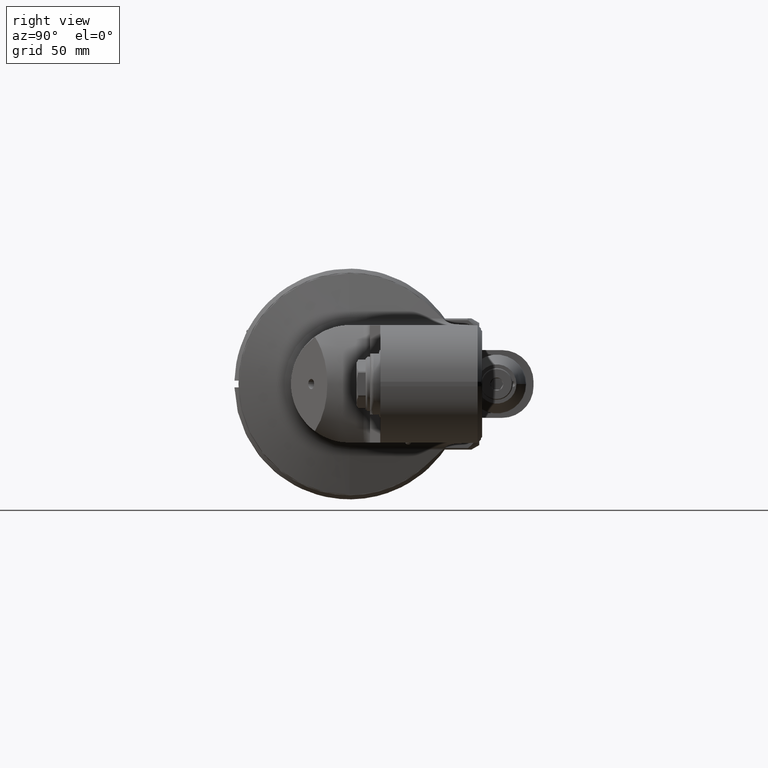
[diagram: clean part render]
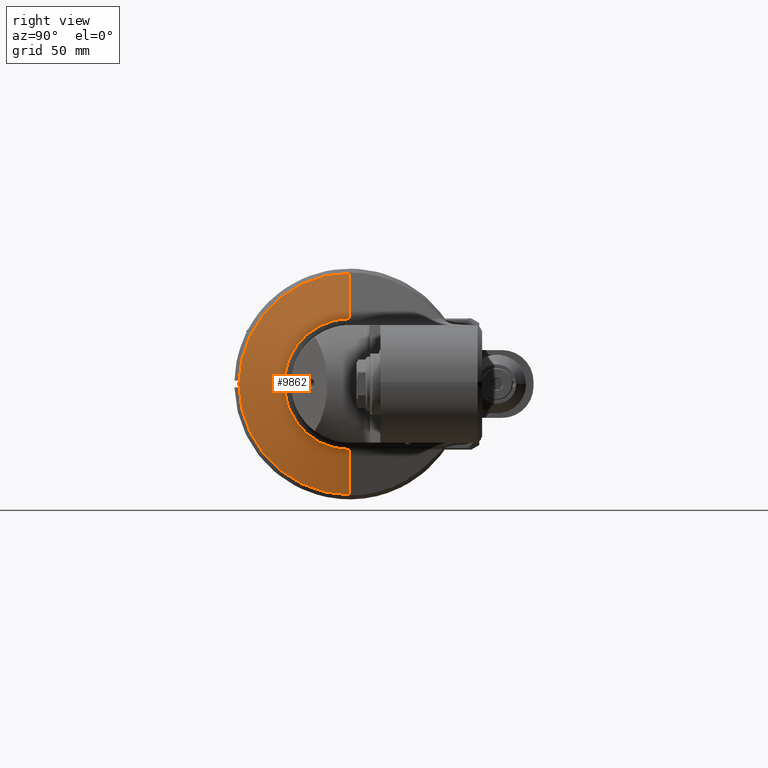
[diagram: same view with one face highlighted and labeled with its STEP entity id]
A machine part, right view. The second image highlights one B-rep face of the part: STEP entity #9862.
In plain terms, the highlighted conical surface has half-angle 75 deg.
Its self-contained STEP definition (entity closure, byte-faithful):
#760=CONICAL_SURFACE('',#11009,38.98236190979,1.30899693899575);
#1277=FACE_OUTER_BOUND('',#1975,.T.);
#1975=EDGE_LOOP('',(#8834,#8835,#8836,#8837));
#2400=CIRCLE('',#10777,28.96472381959);
#2404=CIRCLE('',#10786,49.);
#3245=LINE('',#47803,#3909);
#3246=LINE('',#47804,#3910);
#3909=VECTOR('',#13637,20.7420441975205);
#3910=VECTOR('',#13638,20.7420441975205);
#4692=VERTEX_POINT('',#47227);
#4693=VERTEX_POINT('',#47229);
#4700=VERTEX_POINT('',#47290);
#4701=VERTEX_POINT('',#47292);
#5973=EDGE_CURVE('',#4692,#4693,#2400,.T.);
#5985=EDGE_CURVE('',#4701,#4700,#2404,.T.);
#6209=EDGE_CURVE('',#4692,#4701,#3245,.T.);
#6210=EDGE_CURVE('',#4700,#4693,#3246,.T.);
#8834=ORIENTED_EDGE('',*,*,#5973,.F.);
#8835=ORIENTED_EDGE('',*,*,#6209,.T.);
#8836=ORIENTED_EDGE('',*,*,#5985,.T.);
#8837=ORIENTED_EDGE('',*,*,#6210,.T.);
#9862=ADVANCED_FACE('',(#1277),#760,.T.);
#10777=AXIS2_PLACEMENT_3D('',#47230,#13073,#13074);
#10786=AXIS2_PLACEMENT_3D('',#47293,#13093,#13094);
#11009=AXIS2_PLACEMENT_3D('',#47802,#13635,#13636);
#13073=DIRECTION('center_axis',(1.,0.,0.));
#13074=DIRECTION('ref_axis',(0.,0.,1.));
#13093=DIRECTION('center_axis',(1.,0.,0.));
#13094=DIRECTION('ref_axis',(0.,-3.889858956483E-14,1.));
#13635=DIRECTION('center_axis',(-1.,0.,0.));
#13636=DIRECTION('ref_axis',(0.,0.,-1.));
#13637=DIRECTION('',(-0.258819045102493,-3.02220139078792E-14,0.965925826289076));
#13638=DIRECTION('',(0.258819045102493,1.00751924200297E-13,0.965925826289076));
#47227=CARTESIAN_POINT('',(20.13629689006,0.,28.96472381959));
#47229=CARTESIAN_POINT('',(20.13629689006,0.,-28.96472381959));
#47230=CARTESIAN_POINT('Origin',(20.13629689006,0.,0.));
#47290=CARTESIAN_POINT('',(14.76786081739,-2.09277040373E-12,-49.));
#47292=CARTESIAN_POINT('',(14.76786081739,-1.906030888676E-12,49.));
#47293=CARTESIAN_POINT('Origin',(14.76786081739,0.,0.));
#47802=CARTESIAN_POINT('Origin',(17.45207885372,0.,0.));
#47803=CARTESIAN_POINT('',(20.13629689006,0.,28.96472381959));
#47804=CARTESIAN_POINT('',(14.76786081739,-2.09277040373E-12,-49.));